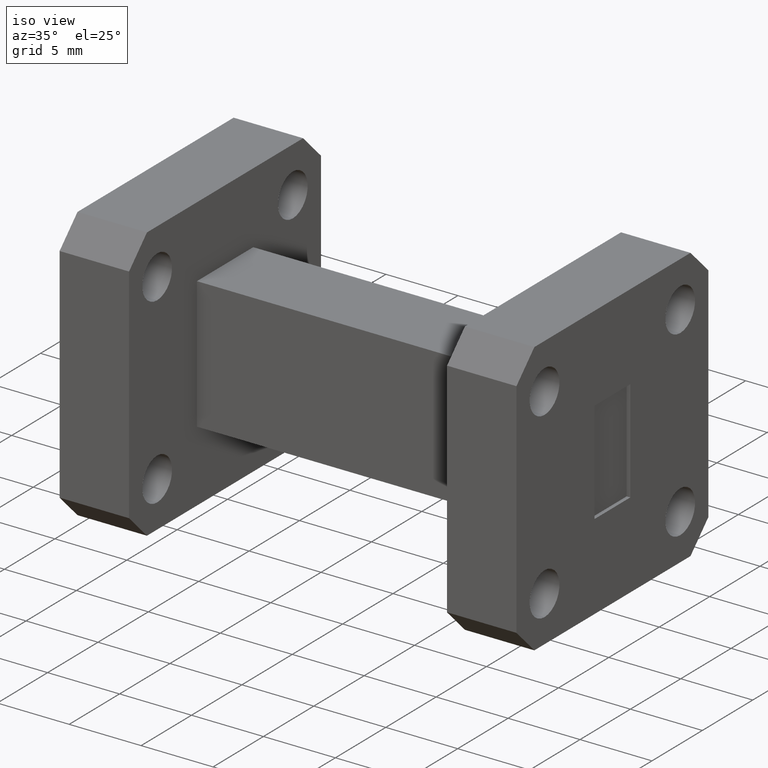
[diagram: clean part render]
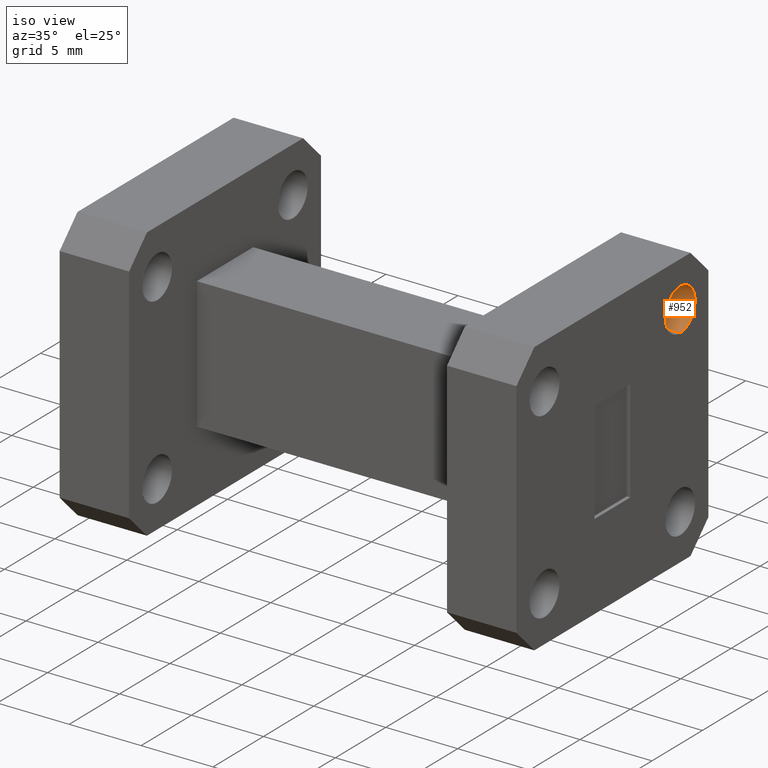
[diagram: same view with one face highlighted and labeled with its STEP entity id]
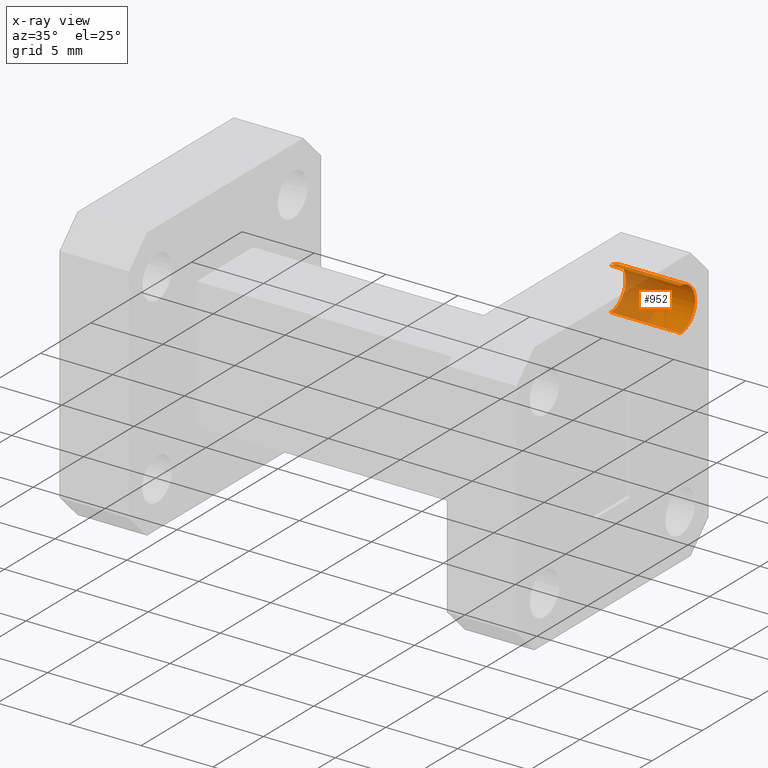
[diagram: x-ray of the same camera — body ghosted, the highlighted face saturated]
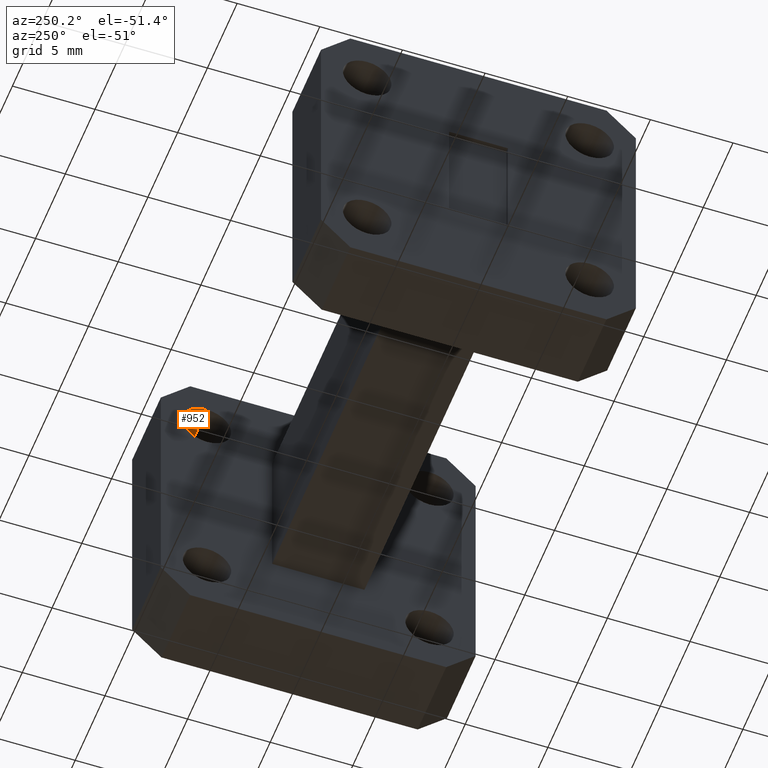
[diagram: same view with one face highlighted and labeled with its STEP entity id]
A machine part, iso view. The second image highlights one B-rep face of the part: STEP entity #952.
The next image is the same camera in x-ray: the body ghosted, the highlighted face saturated — about 46% of this face is hidden behind the body in this view.
A second angle (auxiliary view) of the same face is appended — the face is thin or edge-on in the first view.
In plain terms, the highlighted cylindrical surface (edge-blend (fillet) strip) has radius 1.4732 mm, axis along (-1, -0, -0).
Its self-contained STEP definition (entity closure, byte-faithful):
#2 = DIRECTION ( 'NONE',  ( -1.000000000000000000, 0.000000000000000000, 0.000000000000000000 ) ) ;
#55 = EDGE_CURVE ( 'NONE', #565, #1173, #736, .T. ) ;
#61 = ORIENTED_EDGE ( 'NONE', *, *, #153, .F. ) ;
#153 = EDGE_CURVE ( 'NONE', #1173, #764, #654, .T. ) ;
#197 = CARTESIAN_POINT ( 'NONE',  ( 1.060000000000000053, 0.2650000000000002354, 0.3079999999999995519 ) ) ;
#235 = ORIENTED_EDGE ( 'NONE', *, *, #1264, .T. ) ;
#268 = EDGE_LOOP ( 'NONE', ( #61, #312, #235, #1302 ) ) ;
#278 = CARTESIAN_POINT ( 'NONE',  ( 0.000000000000000000, 0.2650000000000002354, 0.3079999999999995519 ) ) ;
#312 = ORIENTED_EDGE ( 'NONE', *, *, #55, .F. ) ;
#398 = DIRECTION ( 'NONE',  ( -1.000000000000000000, -0.000000000000000000, -0.000000000000000000 ) ) ;
#435 = VECTOR ( 'NONE', #1293, 39.37007874015748143 ) ;
#538 = CARTESIAN_POINT ( 'NONE',  ( 0.000000000000000000, 0.2650000000000002354, 0.1920000000000003926 ) ) ;
#560 = DIRECTION ( 'NONE',  ( 0.000000000000000000, 0.000000000000000000, 1.000000000000000000 ) ) ;
#565 = VERTEX_POINT ( 'NONE', #683 ) ;
#630 = AXIS2_PLACEMENT_3D ( 'NONE', #1558, #1056, #560 ) ;
#654 = LINE ( 'NONE', #538, #1168 ) ;
#683 = CARTESIAN_POINT ( 'NONE',  ( 1.250000000000000000, 0.2650000000000002354, 0.3079999999999997184 ) ) ;
#691 = CYLINDRICAL_SURFACE ( 'NONE', #630, 0.05799999999999955885 ) ;
#736 = CIRCLE ( 'NONE', #1383, 0.05799999999999969763 ) ;
#742 = DIRECTION ( 'NONE',  ( -1.000000000000000000, -0.000000000000000000, -0.000000000000000000 ) ) ;
#764 = VERTEX_POINT ( 'NONE', #1481 ) ;
#774 = CIRCLE ( 'NONE', #854, 0.05799999999999955885 ) ;
#854 = AXIS2_PLACEMENT_3D ( 'NONE', #1439, #2, #1313 ) ;
#952 = ADVANCED_FACE ( 'NONE', ( #1343 ), #691, .F. ) ;
#1056 = DIRECTION ( 'NONE',  ( -1.000000000000000000, -0.000000000000000000, -0.000000000000000000 ) ) ;
#1129 = CARTESIAN_POINT ( 'NONE',  ( 1.250000000000000000, 0.2650000000000002354, 0.2500000000000000000 ) ) ;
#1168 = VECTOR ( 'NONE', #398, 39.37007874015748143 ) ;
#1173 = VERTEX_POINT ( 'NONE', #1544 ) ;
#1247 = DIRECTION ( 'NONE',  ( 0.000000000000000000, 0.000000000000000000, 1.000000000000000000 ) ) ;
#1264 = EDGE_CURVE ( 'NONE', #565, #1288, #1534, .T. ) ;
#1288 = VERTEX_POINT ( 'NONE', #197 ) ;
#1293 = DIRECTION ( 'NONE',  ( -1.000000000000000000, -0.000000000000000000, -0.000000000000000000 ) ) ;
#1302 = ORIENTED_EDGE ( 'NONE', *, *, #1662, .T. ) ;
#1313 = DIRECTION ( 'NONE',  ( 0.000000000000000000, 0.000000000000000000, 1.000000000000000000 ) ) ;
#1343 = FACE_OUTER_BOUND ( 'NONE', #268, .T. ) ;
#1383 = AXIS2_PLACEMENT_3D ( 'NONE', #1129, #742, #1247 ) ;
#1439 = CARTESIAN_POINT ( 'NONE',  ( 1.060000000000000053, 0.2650000000000002354, 0.2500000000000000000 ) ) ;
#1481 = CARTESIAN_POINT ( 'NONE',  ( 1.060000000000000053, 0.2650000000000002354, 0.1920000000000003926 ) ) ;
#1534 = LINE ( 'NONE', #278, #435 ) ;
#1544 = CARTESIAN_POINT ( 'NONE',  ( 1.250000000000000000, 0.2650000000000002354, 0.1920000000000003093 ) ) ;
#1558 = CARTESIAN_POINT ( 'NONE',  ( 0.000000000000000000, 0.2650000000000002354, 0.2500000000000000000 ) ) ;
#1662 = EDGE_CURVE ( 'NONE', #1288, #764, #774, .T. ) ;